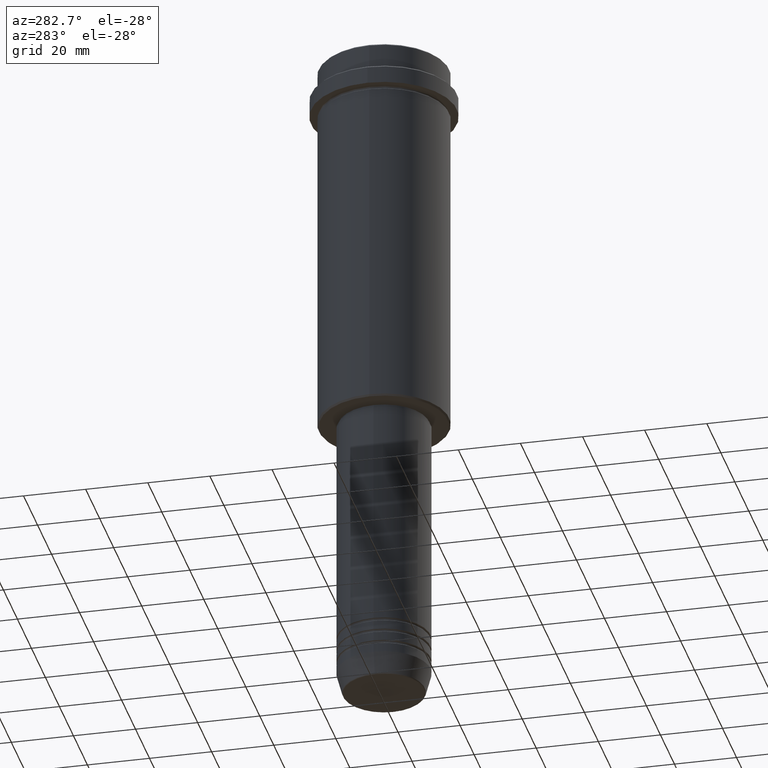
[diagram: clean part render]
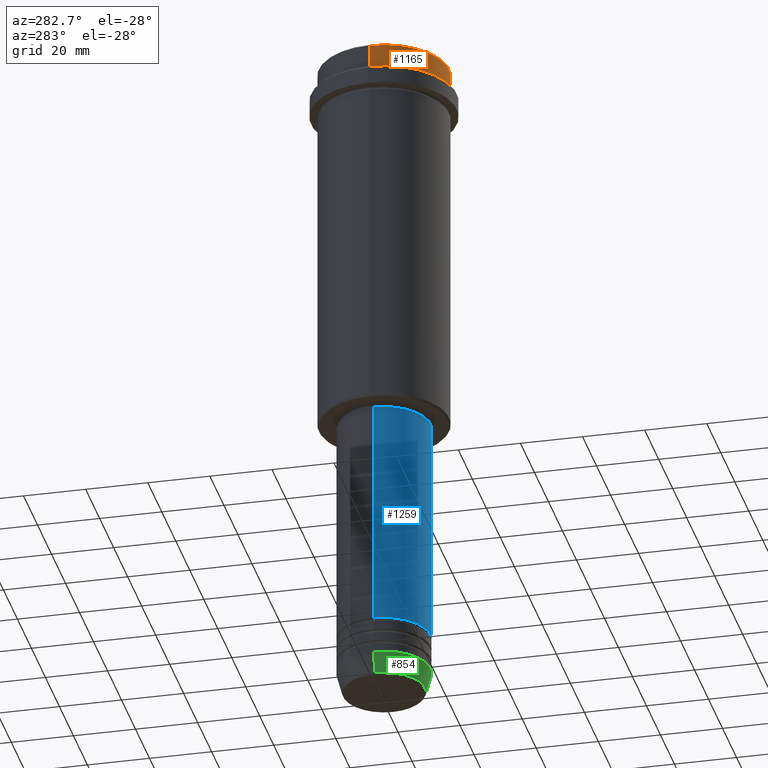
[diagram: same view with three faces highlighted in distinct colors, each labeled with its STEP entity id]
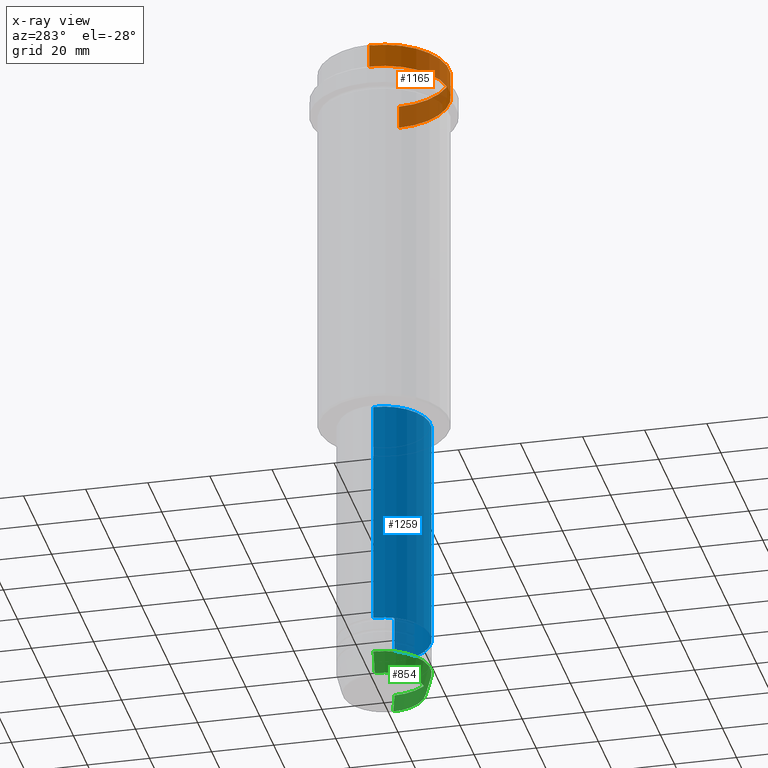
[diagram: x-ray of the same camera — body ghosted, the three highlighted faces saturated]
A machine part, auxiliary view with three faces highlighted in distinct colors.
The next image is the same camera in x-ray (body ghosted, the three faces saturated) — at least one of them is partly hidden behind the body in this view.
Their STEP definitions:

[orange] entity #1165 — the highlighted cylindrical surface (partial cylindrical patch) has radius 21 mm, axis along (-0, -0, 1).
#18 = CARTESIAN_POINT ( 'NONE',  ( 0.000000000000000000, 0.000000000000000000, -0.5000000000000073275 ) ) ;
#33 = EDGE_CURVE ( 'NONE', #1250, #757, #114, .T. ) ;
#52 = EDGE_CURVE ( 'NONE', #988, #757, #605, .T. ) ;
#96 = CARTESIAN_POINT ( 'NONE',  ( -20.99999999999999645, 2.571758278209441267E-15, -0.5000000000000073275 ) ) ;
#97 = ORIENTED_EDGE ( 'NONE', *, *, #1309, .T. ) ;
#113 = CARTESIAN_POINT ( 'NONE',  ( 20.99999999999999645, 0.000000000000000000, 0.000000000000000000 ) ) ;
#114 = LINE ( 'NONE', #553, #429 ) ;
#125 = AXIS2_PLACEMENT_3D ( 'NONE', #18, #232, #1232 ) ;
#147 = AXIS2_PLACEMENT_3D ( 'NONE', #950, #210, #425 ) ;
#210 = DIRECTION ( 'NONE',  ( -0.000000000000000000, -0.000000000000000000, 1.000000000000000000 ) ) ;
#232 = DIRECTION ( 'NONE',  ( 0.000000000000000000, 0.000000000000000000, -1.000000000000000000 ) ) ;
#288 = CARTESIAN_POINT ( 'NONE',  ( 20.99999999999999645, 0.000000000000000000, -0.5000000000000073275 ) ) ;
#347 = DIRECTION ( 'NONE',  ( -0.000000000000000000, -0.000000000000000000, 1.000000000000000000 ) ) ;
#403 = FACE_OUTER_BOUND ( 'NONE', #1079, .T. ) ;
#425 = DIRECTION ( 'NONE',  ( 1.000000000000000000, 0.000000000000000000, 0.000000000000000000 ) ) ;
#429 = VECTOR ( 'NONE', #445, 1000.000000000000000 ) ;
#445 = DIRECTION ( 'NONE',  ( -0.000000000000000000, -0.000000000000000000, 1.000000000000000000 ) ) ;
#553 = CARTESIAN_POINT ( 'NONE',  ( -20.99999999999999645, 2.571758278209441267E-15, 0.000000000000000000 ) ) ;
#561 = AXIS2_PLACEMENT_3D ( 'NONE', #962, #859, #1399 ) ;
#605 = CIRCLE ( 'NONE', #125, 20.99999999999999645 ) ;
#757 = VERTEX_POINT ( 'NONE', #96 ) ;
#859 = DIRECTION ( 'NONE',  ( -0.000000000000000000, -0.000000000000000000, 1.000000000000000000 ) ) ;
#950 = CARTESIAN_POINT ( 'NONE',  ( 0.000000000000000000, 0.000000000000000000, 0.000000000000000000 ) ) ;
#954 = CARTESIAN_POINT ( 'NONE',  ( 20.99999999999999645, 0.000000000000000000, -7.999999999999998224 ) ) ;
#962 = CARTESIAN_POINT ( 'NONE',  ( 0.000000000000000000, 0.000000000000000000, -7.999999999999998224 ) ) ;
#988 = VERTEX_POINT ( 'NONE', #288 ) ;
#1022 = ORIENTED_EDGE ( 'NONE', *, *, #33, .F. ) ;
#1026 = ORIENTED_EDGE ( 'NONE', *, *, #1230, .T. ) ;
#1079 = EDGE_LOOP ( 'NONE', ( #1022, #1026, #97, #1302 ) ) ;
#1096 = CARTESIAN_POINT ( 'NONE',  ( -20.99999999999999645, 2.571758278209441267E-15, -7.999999999999998224 ) ) ;
#1165 = ADVANCED_FACE ( 'NONE', ( #403 ), #1408, .T. ) ;
#1217 = CIRCLE ( 'NONE', #561, 20.99999999999999645 ) ;
#1230 = EDGE_CURVE ( 'NONE', #1250, #1378, #1217, .T. ) ;
#1232 = DIRECTION ( 'NONE',  ( 1.000000000000000000, 0.000000000000000000, 0.000000000000000000 ) ) ;
#1250 = VERTEX_POINT ( 'NONE', #1096 ) ;
#1302 = ORIENTED_EDGE ( 'NONE', *, *, #52, .T. ) ;
#1309 = EDGE_CURVE ( 'NONE', #1378, #988, #1348, .T. ) ;
#1348 = LINE ( 'NONE', #113, #1354 ) ;
#1354 = VECTOR ( 'NONE', #347, 1000.000000000000000 ) ;
#1378 = VERTEX_POINT ( 'NONE', #954 ) ;
#1399 = DIRECTION ( 'NONE',  ( 1.000000000000000000, 0.000000000000000000, 0.000000000000000000 ) ) ;
#1408 = CYLINDRICAL_SURFACE ( 'NONE', #147, 20.99999999999999645 ) ;

[blue] entity #1259 — the highlighted cylindrical surface (partial cylindrical patch) has radius 15 mm, axis along (-0, -0, 1).
#2 = DIRECTION ( 'NONE',  ( -0.000000000000000000, -0.000000000000000000, 1.000000000000000000 ) ) ;
#7 = EDGE_CURVE ( 'NONE', #1275, #435, #1306, .T. ) ;
#22 = LINE ( 'NONE', #361, #966 ) ;
#42 = CYLINDRICAL_SURFACE ( 'NONE', #858, 15.00000000000000000 ) ;
#63 = EDGE_CURVE ( 'NONE', #568, #1207, #22, .T. ) ;
#119 = CARTESIAN_POINT ( 'NONE',  ( 0.000000000000000000, 0.000000000000000000, 0.000000000000000000 ) ) ;
#231 = FACE_OUTER_BOUND ( 'NONE', #483, .T. ) ;
#332 = EDGE_CURVE ( 'NONE', #1207, #435, #1357, .T. ) ;
#361 = CARTESIAN_POINT ( 'NONE',  ( -15.00000000000000000, 1.836970198721029589E-15, 0.000000000000000000 ) ) ;
#414 = CARTESIAN_POINT ( 'NONE',  ( -15.00000000000000000, 1.836970198721029589E-15, -126.0000000000000000 ) ) ;
#435 = VERTEX_POINT ( 'NONE', #687 ) ;
#483 = EDGE_LOOP ( 'NONE', ( #1294, #1101, #940, #654 ) ) ;
#541 = CARTESIAN_POINT ( 'NONE',  ( 15.00000000000000000, 0.000000000000000000, 0.000000000000000000 ) ) ;
#568 = VERTEX_POINT ( 'NONE', #831 ) ;
#654 = ORIENTED_EDGE ( 'NONE', *, *, #332, .F. ) ;
#687 = CARTESIAN_POINT ( 'NONE',  ( 15.00000000000000000, 0.000000000000000000, -126.0000000000000000 ) ) ;
#713 = DIRECTION ( 'NONE',  ( 1.000000000000000000, 0.000000000000000000, 0.000000000000000000 ) ) ;
#722 = AXIS2_PLACEMENT_3D ( 'NONE', #1370, #1256, #713 ) ;
#807 = DIRECTION ( 'NONE',  ( -0.000000000000000000, -0.000000000000000000, 1.000000000000000000 ) ) ;
#812 = CARTESIAN_POINT ( 'NONE',  ( 0.000000000000000000, 0.000000000000000000, -126.0000000000000000 ) ) ;
#831 = CARTESIAN_POINT ( 'NONE',  ( -15.00000000000000000, 1.836970198721029589E-15, -200.9999999999999147 ) ) ;
#858 = AXIS2_PLACEMENT_3D ( 'NONE', #119, #807, #876 ) ;
#876 = DIRECTION ( 'NONE',  ( 1.000000000000000000, 0.000000000000000000, 0.000000000000000000 ) ) ;
#932 = DIRECTION ( 'NONE',  ( -0.000000000000000000, -0.000000000000000000, 1.000000000000000000 ) ) ;
#940 = ORIENTED_EDGE ( 'NONE', *, *, #7, .T. ) ;
#966 = VECTOR ( 'NONE', #1225, 1000.000000000000000 ) ;
#997 = EDGE_CURVE ( 'NONE', #568, #1275, #1310, .T. ) ;
#1082 = AXIS2_PLACEMENT_3D ( 'NONE', #812, #932, #1261 ) ;
#1101 = ORIENTED_EDGE ( 'NONE', *, *, #997, .T. ) ;
#1150 = VECTOR ( 'NONE', #2, 1000.000000000000000 ) ;
#1207 = VERTEX_POINT ( 'NONE', #414 ) ;
#1225 = DIRECTION ( 'NONE',  ( -0.000000000000000000, -0.000000000000000000, 1.000000000000000000 ) ) ;
#1246 = CARTESIAN_POINT ( 'NONE',  ( 15.00000000000000000, 0.000000000000000000, -200.9999999999999147 ) ) ;
#1256 = DIRECTION ( 'NONE',  ( -0.000000000000000000, -0.000000000000000000, 1.000000000000000000 ) ) ;
#1259 = ADVANCED_FACE ( 'NONE', ( #231 ), #42, .T. ) ;
#1261 = DIRECTION ( 'NONE',  ( 1.000000000000000000, 0.000000000000000000, 0.000000000000000000 ) ) ;
#1275 = VERTEX_POINT ( 'NONE', #1246 ) ;
#1294 = ORIENTED_EDGE ( 'NONE', *, *, #63, .F. ) ;
#1306 = LINE ( 'NONE', #541, #1150 ) ;
#1310 = CIRCLE ( 'NONE', #722, 15.00000000000000000 ) ;
#1357 = CIRCLE ( 'NONE', #1082, 15.00000000000000000 ) ;
#1370 = CARTESIAN_POINT ( 'NONE',  ( 0.000000000000000000, 0.000000000000000000, -200.9999999999999147 ) ) ;

[green] entity #854 — the highlighted conical surface has half-angle 15 deg.
#1 = CARTESIAN_POINT ( 'NONE',  ( -15.00000000000000000, 1.836970198721029589E-15, -213.0000000000000284 ) ) ;
#3 = FACE_OUTER_BOUND ( 'NONE', #569, .T. ) ;
#4 = ORIENTED_EDGE ( 'NONE', *, *, #364, .T. ) ;
#57 = VECTOR ( 'NONE', #191, 1000.000000000000114 ) ;
#150 = ORIENTED_EDGE ( 'NONE', *, *, #540, .F. ) ;
#169 = CIRCLE ( 'NONE', #769, 15.00000000000000000 ) ;
#191 = DIRECTION ( 'NONE',  ( 0.2588190451025205174, 0.000000000000000000, 0.9659258262890684232 ) ) ;
#250 = CARTESIAN_POINT ( 'NONE',  ( 13.22365507213720015, 0.000000000000000000, -219.6294095225512990 ) ) ;
#257 = CARTESIAN_POINT ( 'NONE',  ( -13.22365507213720015, 1.728200442216588780E-15, -219.6294095225512990 ) ) ;
#306 = CARTESIAN_POINT ( 'NONE',  ( 15.00000000000000000, 0.000000000000000000, -213.0000000000000284 ) ) ;
#317 = EDGE_CURVE ( 'NONE', #973, #841, #901, .T. ) ;
#364 = EDGE_CURVE ( 'NONE', #841, #596, #1281, .T. ) ;
#446 = CARTESIAN_POINT ( 'NONE',  ( 0.000000000000000000, 0.000000000000000000, -213.0000000000000284 ) ) ;
#497 = AXIS2_PLACEMENT_3D ( 'NONE', #1375, #594, #949 ) ;
#517 = DIRECTION ( 'NONE',  ( -0.000000000000000000, -0.000000000000000000, 1.000000000000000000 ) ) ;
#540 = EDGE_CURVE ( 'NONE', #905, #596, #169, .T. ) ;
#569 = EDGE_LOOP ( 'NONE', ( #672, #739, #4, #150 ) ) ;
#594 = DIRECTION ( 'NONE',  ( -0.000000000000000000, -0.000000000000000000, 1.000000000000000000 ) ) ;
#596 = VERTEX_POINT ( 'NONE', #1031 ) ;
#672 = ORIENTED_EDGE ( 'NONE', *, *, #1364, .F. ) ;
#674 = CARTESIAN_POINT ( 'NONE',  ( -15.00000000000000000, 1.836970198721029589E-15, -213.0000000000000284 ) ) ;
#679 = CONICAL_SURFACE ( 'NONE', #1036, 15.00000000000000000, 0.2617993877991491303 ) ;
#725 = CARTESIAN_POINT ( 'NONE',  ( 0.000000000000000000, 0.000000000000000000, -213.0000000000000284 ) ) ;
#739 = ORIENTED_EDGE ( 'NONE', *, *, #317, .T. ) ;
#769 = AXIS2_PLACEMENT_3D ( 'NONE', #725, #517, #1347 ) ;
#841 = VERTEX_POINT ( 'NONE', #250 ) ;
#854 = ADVANCED_FACE ( 'NONE', ( #3 ), #679, .T. ) ;
#882 = DIRECTION ( 'NONE',  ( 1.000000000000000000, 0.000000000000000000, 0.000000000000000000 ) ) ;
#901 = CIRCLE ( 'NONE', #497, 13.22365507213720015 ) ;
#905 = VERTEX_POINT ( 'NONE', #674 ) ;
#949 = DIRECTION ( 'NONE',  ( 1.000000000000000000, 0.000000000000000000, 0.000000000000000000 ) ) ;
#973 = VERTEX_POINT ( 'NONE', #257 ) ;
#1003 = DIRECTION ( 'NONE',  ( -0.000000000000000000, -0.000000000000000000, 1.000000000000000000 ) ) ;
#1031 = CARTESIAN_POINT ( 'NONE',  ( 15.00000000000000000, 0.000000000000000000, -213.0000000000000284 ) ) ;
#1036 = AXIS2_PLACEMENT_3D ( 'NONE', #446, #1003, #882 ) ;
#1081 = VECTOR ( 'NONE', #1208, 1000.000000000000114 ) ;
#1091 = LINE ( 'NONE', #1, #1081 ) ;
#1208 = DIRECTION ( 'NONE',  ( -0.2588190451025205174, 3.169619151431761243E-17, 0.9659258262890684232 ) ) ;
#1281 = LINE ( 'NONE', #306, #57 ) ;
#1347 = DIRECTION ( 'NONE',  ( 1.000000000000000000, 0.000000000000000000, 0.000000000000000000 ) ) ;
#1364 = EDGE_CURVE ( 'NONE', #973, #905, #1091, .T. ) ;
#1375 = CARTESIAN_POINT ( 'NONE',  ( 0.000000000000000000, 0.000000000000000000, -219.6294095225512990 ) ) ;